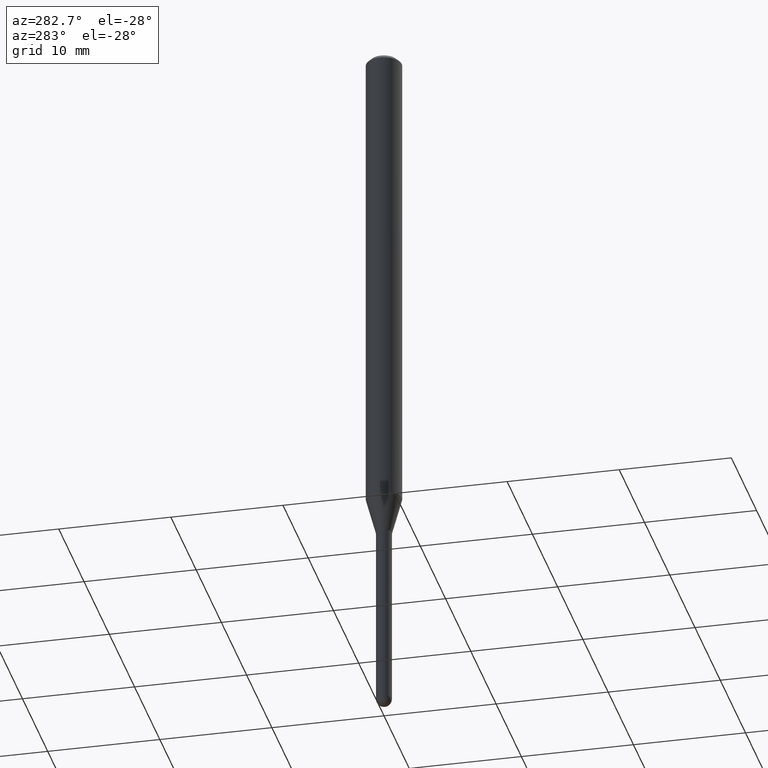
[diagram: clean part render]
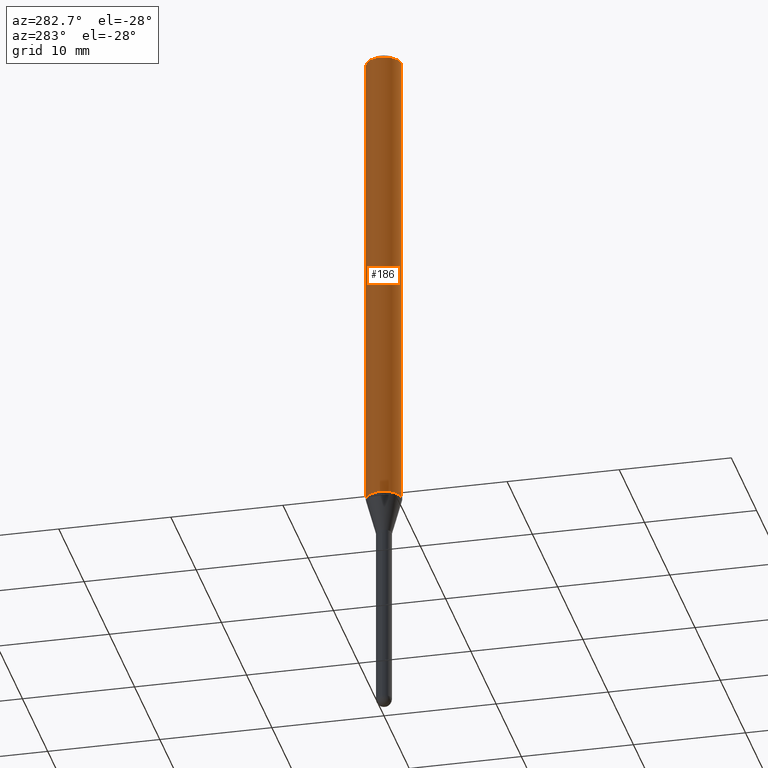
[diagram: same view with one face highlighted and labeled with its STEP entity id]
A machine part, auxiliary view. The second image highlights one B-rep face of the part: STEP entity #186.
In plain terms, the highlighted cylindrical surface (edge-blend (fillet) strip) has radius 1.5875 mm, axis along (-0, 0, 1).
Its self-contained STEP definition (entity closure, byte-faithful):
#9 = EDGE_CURVE ( 'NONE', #385, #246, #301, .T. ) ;
#15 = LINE ( 'NONE', #134, #336 ) ;
#41 = FACE_OUTER_BOUND ( 'NONE', #355, .T. ) ;
#45 = CARTESIAN_POINT ( 'NONE',  ( 4.440892098501044258E-16, 0.06249999999999995837, -0.01500000000000022669 ) ) ;
#50 = CARTESIAN_POINT ( 'NONE',  ( 3.668196256203603906E-31, -5.237231965462582657E-17, -0.01500000000000000812 ) ) ;
#54 = DIRECTION ( 'NONE',  ( -6.982962677686265922E-15, -1.000000000000000000, 4.370956789862821150E-15 ) ) ;
#78 = DIRECTION ( 'NONE',  ( -2.445464170802400853E-29, 3.491487976975052738E-15, 1.000000000000000000 ) ) ;
#112 = VECTOR ( 'NONE', #144, 39.37007874015748143 ) ;
#118 = ORIENTED_EDGE ( 'NONE', *, *, #9, .F. ) ;
#128 = CYLINDRICAL_SURFACE ( 'NONE', #193, 0.06250000000000000000 ) ;
#134 = CARTESIAN_POINT ( 'NONE',  ( -4.364351673553916201E-16, -0.06250000000000000000, 2.182179985609407961E-16 ) ) ;
#144 = DIRECTION ( 'NONE',  ( -2.445464170802401133E-29, 3.491487976975052738E-15, 1.000000000000000000 ) ) ;
#160 = CIRCLE ( 'NONE', #249, 0.06250000000000000000 ) ;
#171 = DIRECTION ( 'NONE',  ( -2.445464170802401133E-29, 3.491487976975052738E-15, 1.000000000000000000 ) ) ;
#174 = ORIENTED_EDGE ( 'NONE', *, *, #397, .F. ) ;
#186 = ADVANCED_FACE ( 'NONE', ( #41 ), #128, .T. ) ;
#193 = AXIS2_PLACEMENT_3D ( 'NONE', #377, #78, #241 ) ;
#200 = DIRECTION ( 'NONE',  ( -2.445464170802400853E-29, 3.491487976975052738E-15, 1.000000000000000000 ) ) ;
#201 = CARTESIAN_POINT ( 'NONE',  ( 4.155768553895059531E-29, -5.933358629521309824E-15, -1.699378221735089456 ) ) ;
#222 = CARTESIAN_POINT ( 'NONE',  ( 4.440892098500625669E-16, 0.06250000000000000000, -2.182179985609407961E-16 ) ) ;
#241 = DIRECTION ( 'NONE',  ( -6.982962677686265922E-15, -1.000000000000000000, 3.491487976975052738E-15 ) ) ;
#246 = VERTEX_POINT ( 'NONE', #45 ) ;
#249 = AXIS2_PLACEMENT_3D ( 'NONE', #50, #200, #453 ) ;
#273 = ORIENTED_EDGE ( 'NONE', *, *, #334, .T. ) ;
#276 = CARTESIAN_POINT ( 'NONE',  ( 4.440892098501039328E-16, 0.06249999999999404643, -1.699378221735089678 ) ) ;
#299 = VERTEX_POINT ( 'NONE', #400 ) ;
#301 = LINE ( 'NONE', #222, #112 ) ;
#334 = EDGE_CURVE ( 'NONE', #385, #368, #349, .T. ) ;
#336 = VECTOR ( 'NONE', #171, 39.37007874015748143 ) ;
#349 = CIRCLE ( 'NONE', #410, 0.06250000000000000000 ) ;
#355 = EDGE_LOOP ( 'NONE', ( #118, #273, #448, #174 ) ) ;
#361 = DIRECTION ( 'NONE',  ( -2.445464170802400853E-29, 3.491487976975052738E-15, 1.000000000000000000 ) ) ;
#368 = VERTEX_POINT ( 'NONE', #393 ) ;
#377 = CARTESIAN_POINT ( 'NONE',  ( 0.000000000000000000, 0.000000000000000000, 0.000000000000000000 ) ) ;
#385 = VERTEX_POINT ( 'NONE', #276 ) ;
#393 = CARTESIAN_POINT ( 'NONE',  ( -4.364351673553502542E-16, -0.06250000000000595357, -1.699378221735089234 ) ) ;
#397 = EDGE_CURVE ( 'NONE', #246, #299, #160, .T. ) ;
#400 = CARTESIAN_POINT ( 'NONE',  ( -4.364351673553912750E-16, -0.06250000000000005551, -0.01499999999999979128 ) ) ;
#410 = AXIS2_PLACEMENT_3D ( 'NONE', #201, #361, #54 ) ;
#439 = EDGE_CURVE ( 'NONE', #368, #299, #15, .T. ) ;
#448 = ORIENTED_EDGE ( 'NONE', *, *, #439, .T. ) ;
#453 = DIRECTION ( 'NONE',  ( -6.982962677686265922E-15, -1.000000000000000000, 3.483106191921935554E-15 ) ) ;